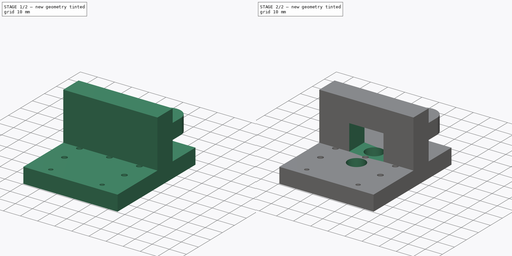
[diagram: build sequence overview — one tinted view per stage of 2, left to right]
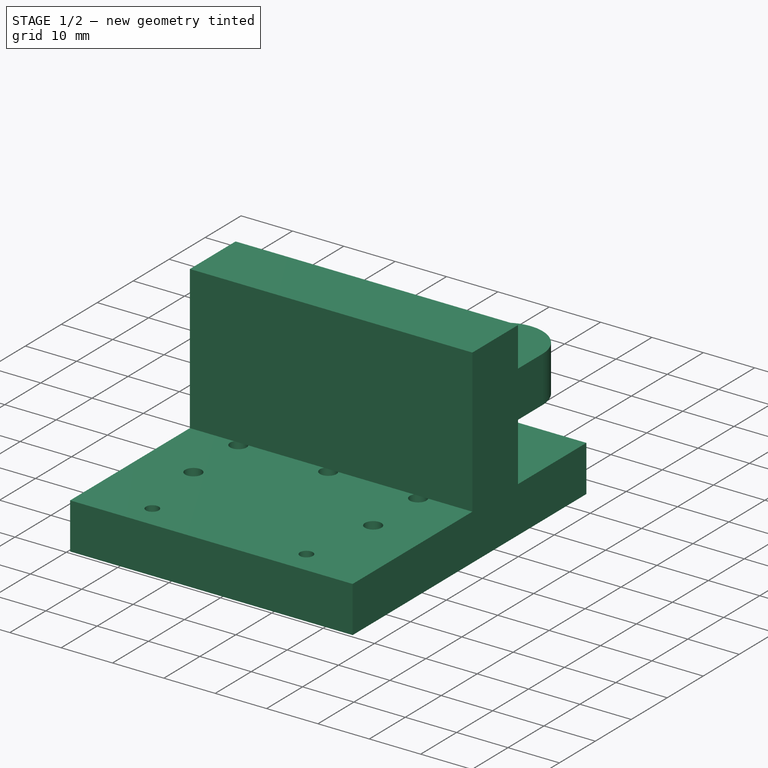
[diagram: stage 1 of 2 — iso view after this stage's code; geometry added in this stage tinted green]
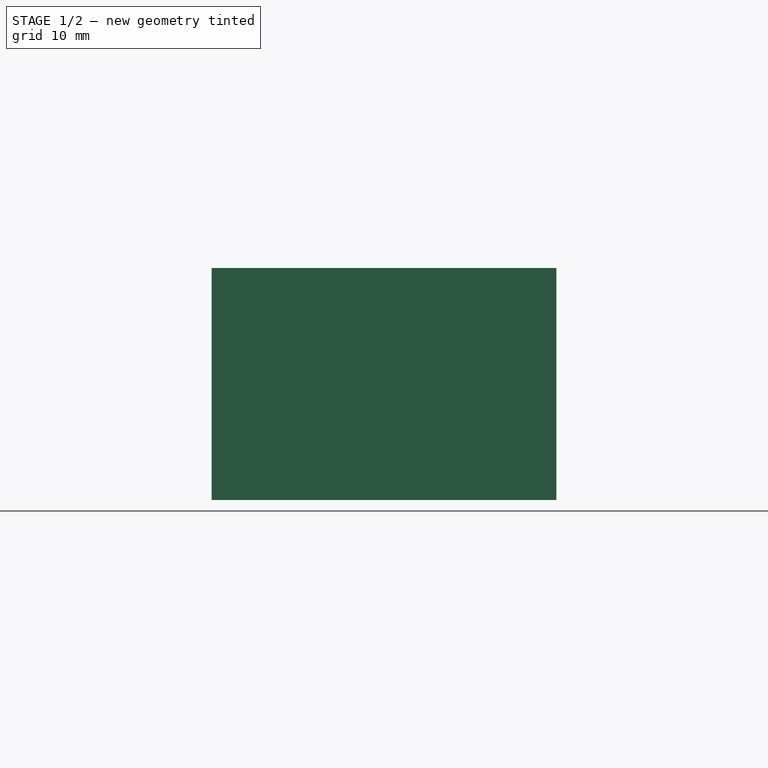
[diagram: stage 1 of 2 — front view after this stage's code; geometry added in this stage tinted green]
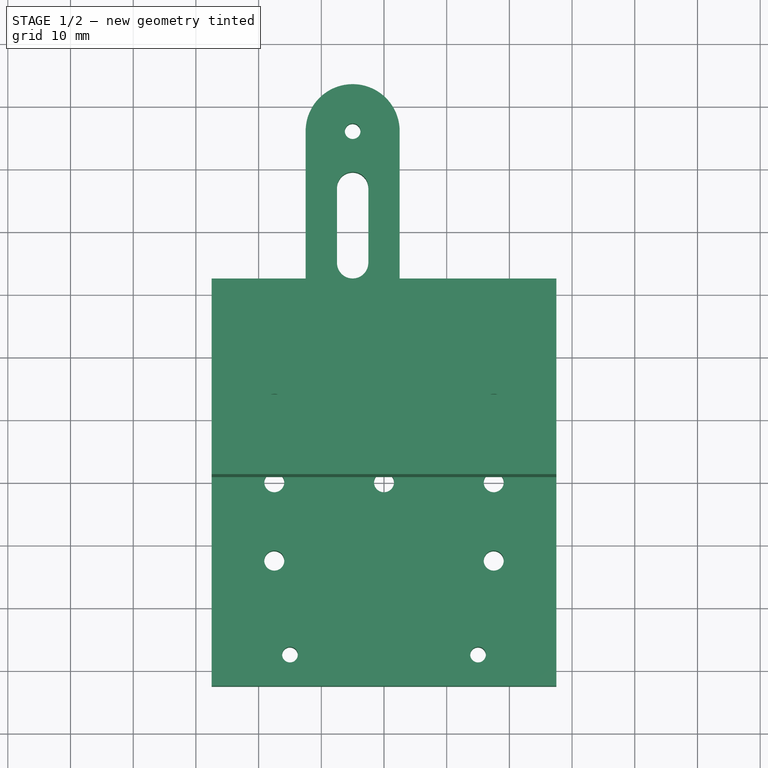
[diagram: stage 1 of 2 — top view after this stage's code; geometry added in this stage tinted green]
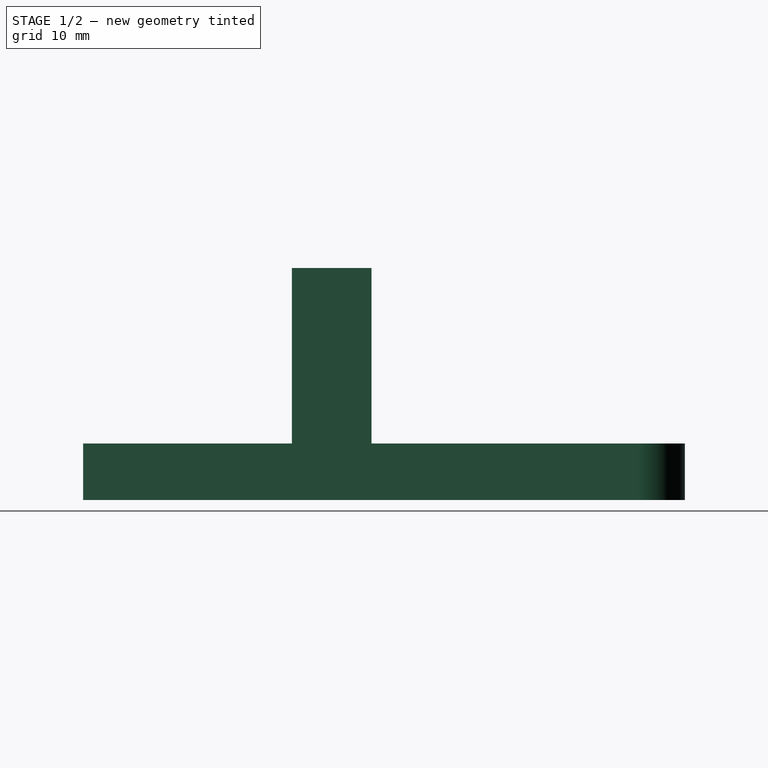
[diagram: stage 1 of 2 — right view after this stage's code; geometry added in this stage tinted green]
FCSTD DOCUMENT  (FreeCAD 0.19R20209 (Git))
Label: X-Axel-Printhead-Base
License: Creative Commons Attribution
LicenseURL: http://creativecommons.org/licenses/by/4.0/
objects: Sketcher::SketchObject×4, PartDesign::Pad×2, PartDesign::Pocket×2, PartDesign::Body×1
note: 13 computed .brp shape members not serialized (recipe doc carries the construction recipe); baked Part::Feature solids carry a one-line shape summary decoded from their .brp

FEATURE [Sketcher::SketchObject] Sketch
  MapMode = 5
  Support = -> [XY_Plane]
  sketch-geometry (27):
    g0: LineSegment StartX=-27.5 StartY=32.5 StartZ=0 EndX=-12.5 EndY=32.5 EndZ=0
    g1: LineSegment StartX=27.5 StartY=32.5 StartZ=0 EndX=27.5 EndY=-32.5 EndZ=0
    g2: LineSegment StartX=27.5 StartY=-32.5 StartZ=0 EndX=-27.5 EndY=-32.5 EndZ=0
    g3: LineSegment StartX=-27.5 StartY=-32.5 StartZ=0 EndX=-27.5 EndY=32.5 EndZ=0
    g4: Circle CenterX=-15 CenterY=-27.5 CenterZ=0 NormalX=0 NormalY=0 NormalZ=1 AngleXU=0 Radius=1.25
    g5: Circle CenterX=15 CenterY=-27.5 CenterZ=0 NormalX=0 NormalY=0 NormalZ=1 AngleXU=0 Radius=1.25
    g6: LineSegment StartX=2.5 StartY=56 StartZ=0 EndX=2.5 EndY=32.5 EndZ=0
    g7: LineSegment StartX=-12.5 StartY=32.5 StartZ=0 EndX=-12.5 EndY=56 EndZ=0
    g8: LineSegment StartX=2.5 StartY=32.5 StartZ=0 EndX=27.5 EndY=32.5 EndZ=0
    g9: ArcOfCircle CenterX=-5 CenterY=56 CenterZ=0 NormalX=0 NormalY=0 NormalZ=1 AngleXU=0 Radius=7.5 StartAngle=3e-16 EndAngle=3.14159
    g10: LineSegment [constr] StartX=-12.5 StartY=63.5 StartZ=0 EndX=2.5 EndY=63.5 EndZ=0
    g11: ArcOfCircle CenterX=-5 CenterY=47 CenterZ=0 NormalX=0 NormalY=0 NormalZ=1 AngleXU=0 Radius=2.5 StartAngle=1.1e-15 EndAngle=3.14159
    g12: ArcOfCircle CenterX=-5 CenterY=35 CenterZ=0 NormalX=0 NormalY=0 NormalZ=1 AngleXU=0 Radius=2.5 StartAngle=3.14159 EndAngle=6.28319
    g13: LineSegment StartX=-7.5 StartY=47 StartZ=0 EndX=-7.5 EndY=35 EndZ=0
    g14: LineSegment StartX=-2.5 StartY=47 StartZ=0 EndX=-2.5 EndY=35 EndZ=0
    g15: Circle CenterX=-5 CenterY=56 CenterZ=0 NormalX=0 NormalY=0 NormalZ=1 AngleXU=0 Radius=1.25
    g16: LineSegment [constr] StartX=-17.5 StartY=12.5 StartZ=0 EndX=17.5 EndY=12.5 EndZ=0
    g17: LineSegment [constr] StartX=17.5 StartY=12.5 StartZ=0 EndX=17.5 EndY=-12.5 EndZ=0
    g18: LineSegment [constr] StartX=17.5 StartY=-12.5 StartZ=0 EndX=-17.5 EndY=-12.5 EndZ=0
    g19: LineSegment [constr] StartX=-17.5 StartY=-12.5 StartZ=0 EndX=-17.5 EndY=12.5 EndZ=0
    g20: Circle CenterX=-17.5 CenterY=12.5 CenterZ=0 NormalX=0 NormalY=0 NormalZ=1 AngleXU=0 Radius=1.6
    g21: Circle CenterX=-17.5 CenterY=-12.5 CenterZ=0 NormalX=0 NormalY=0 NormalZ=1 AngleXU=0 Radius=1.6
    g22: Circle CenterX=17.5 CenterY=12.5 CenterZ=0 NormalX=0 NormalY=0 NormalZ=1 AngleXU=0 Radius=1.6
    g23: Circle CenterX=17.5 CenterY=-12.5 CenterZ=0 NormalX=0 NormalY=0 NormalZ=1 AngleXU=0 Radius=1.6
    g24: Circle CenterX=0 CenterY=0 CenterZ=0 NormalX=0 NormalY=0 NormalZ=1 AngleXU=0 Radius=1.6
    g25: Circle CenterX=-17.5 CenterY=-5e-16 CenterZ=0 NormalX=0 NormalY=0 NormalZ=1 AngleXU=0 Radius=1.6
    g26: Circle CenterX=17.5 CenterY=-4e-16 CenterZ=0 NormalX=0 NormalY=0 NormalZ=1 AngleXU=0 Radius=1.6
  constraints (69):
    c: Coincident(g8,g1)
    c: Coincident(g1,g2)
    c: Coincident(g2,g3)
    c: Coincident(g3,g0)
    c: Horizontal(g0)
    c: Horizontal(g2)
    c: Vertical(g1)
    c: Vertical(g3)
    c: Symmetric(g1,g0,g-1)
    c: DistanceY(g3,g3) = 65
    c: DistanceX(g2,g2) = 55
    c: Symmetric(g4,g5,g-2)
    c: DistanceX(g4,g5) = 30
    c: Equal(g4,g5)
    c: Diameter(g4) = 2.5
    c: DistanceY(g2,g4) = 5
    c: Vertical(g6)
    c: Vertical(g7)
    c: Equal(g7,g6)
    c: Coincident(g0,g7)
    c: Tangent(g0,g8)
    c: DistanceX(g0,g6) = 15
    c: DistanceX(g0,g0) = 15
    c: Coincident(g7,g9)
    c: Coincident(g6,g9)
    c: Horizontal(g10)
    c: Tangent(g10,g9)
    c: Angle(g9) = 3.14159
    c: DistanceX(g10,g10) = 15
    c: DistanceY(g0,g10) = 31
    c: Coincident(g6,g8)
    c: Tangent(g11,g14) = 1.5708
    c: Tangent(g11,g13) = -1.5708
    c: Tangent(g13,g12) = -1.5708
    c: Tangent(g14,g12) = 1.5708
    c: Vertical(g13)
    c: Equal(g11,g12)
    c: Diameter(g11) = 5
    c: Vertical(g11,g9)
    c: Tangent(g12,g0)
    c: DistanceY(g12,g11) = 12
    c: Diameter(g15) = 2.5
    c: Coincident(g15,g9)
    c: Coincident(g16,g17)
    c: Coincident(g17,g18)
    c: Coincident(g18,g19)
    c: Coincident(g19,g16)
    c: Horizontal(g16)
    c: Horizontal(g18)
    c: Vertical(g17)
    c: Vertical(g19)
    c: DistanceX(g16,g16) = 35
    c: DistanceY(g19,g19) = 25
    c: Symmetric(g17,g16,g-1)
    c: Equal(g20,g21)
    c: Equal(g21,g22)
    c: Equal(g22,g23)
    c: Equal(g23,g24)
    c: Equal(g24,g26)
    c: Equal(g26,g25)
    c: Diameter(g20) = 3.2
    c: Coincident(g20,g16)
    c: Coincident(g21,g18)
    c: Coincident(g22,g16)
    c: Coincident(g23,g17)
    c: Coincident(g24,g-1)
    c: Symmetric(g21,g20,g25)
    c: Symmetric(g23,g22,g26)
    c: Vertical(g7,g10)
FEATURE [PartDesign::Pad] Pad
  Length = 9
  Length2 = 100
  Profile = -> Sketch
  Refine = true
  Reversed = true
  Type = 0
FEATURE [Sketcher::SketchObject] Sketch001
  MapMode = 5
  Support = -> [XY_Plane]
  sketch-geometry (2):
    g0: Circle CenterX=0 CenterY=7.4 CenterZ=0 NormalX=0 NormalY=0 NormalZ=1 AngleXU=0 Radius=5.1
    g1: Circle CenterX=0 CenterY=-7.4 CenterZ=0 NormalX=0 NormalY=0 NormalZ=1 AngleXU=0 Radius=5.1
  constraints (5):
    c: Equal(g1,g0)
    c: Diameter(g0) = 10.2
    c: Symmetric(g1,g0,g-1)
    c: Vertical(g0,g1)
    c: DistanceY(g1,g0) = 14.8
FEATURE [Sketcher::SketchObject] Sketch002
  MapMode = 5
  Support = -> [XY_Plane]
  sketch-geometry (4):
    g0: LineSegment StartX=-27.5 StartY=13.5 StartZ=0 EndX=27.5 EndY=13.5 EndZ=0
    g1: LineSegment StartX=27.5 StartY=13.5 StartZ=0 EndX=27.5 EndY=0.8 EndZ=0
    g2: LineSegment StartX=27.5 StartY=0.8 StartZ=0 EndX=-27.5 EndY=0.8 EndZ=0
    g3: LineSegment StartX=-27.5 StartY=0.8 StartZ=0 EndX=-27.5 EndY=13.5 EndZ=0
  constraints (10):
    c: Coincident(g0,g1)
    c: Coincident(g1,g2)
    c: Coincident(g2,g3)
    c: Coincident(g3,g0)
    c: Horizontal(g0)
    c: Vertical(g1)
    c: Vertical(g3)
    c: Symmetric(g2,g1,g-2)
    c: DistanceX(g2,g1) = 55
    c: DistanceY(g1,g1) = 12.7
FEATURE [PartDesign::Pad] Pad001
  BaseFeature = -> Pad
  Length = 28
  Length2 = 100
  Profile = -> Sketch002
  Refine = true
  Type = 0
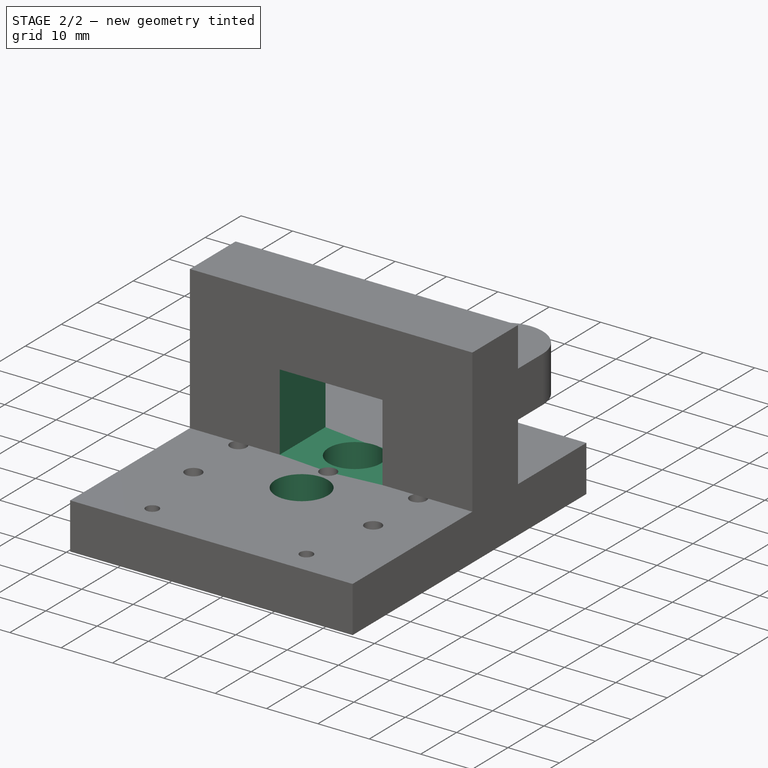
[diagram: stage 2 of 2 — iso view after this stage's code; geometry added in this stage tinted green]
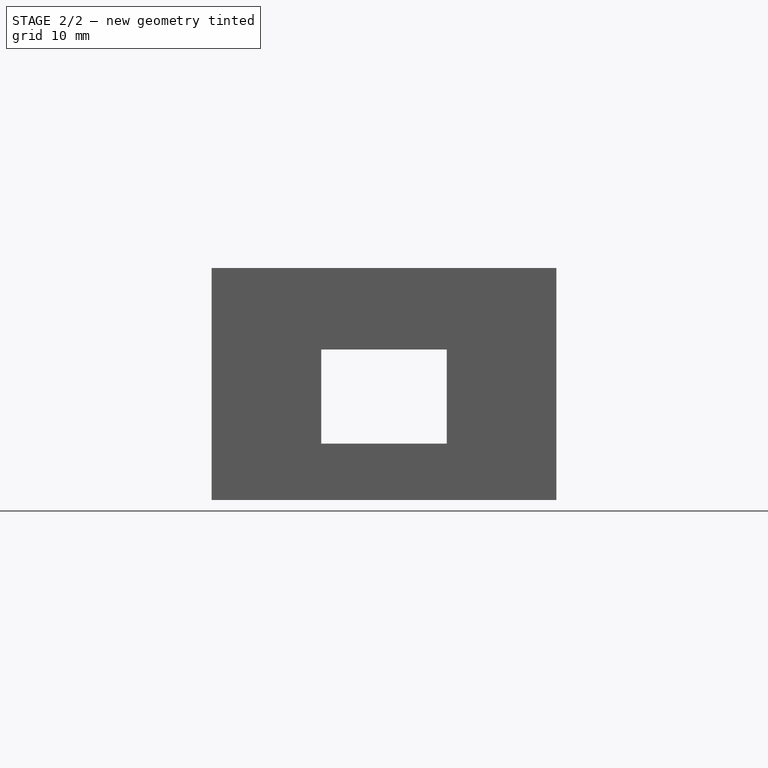
[diagram: stage 2 of 2 — front view after this stage's code; geometry added in this stage tinted green]
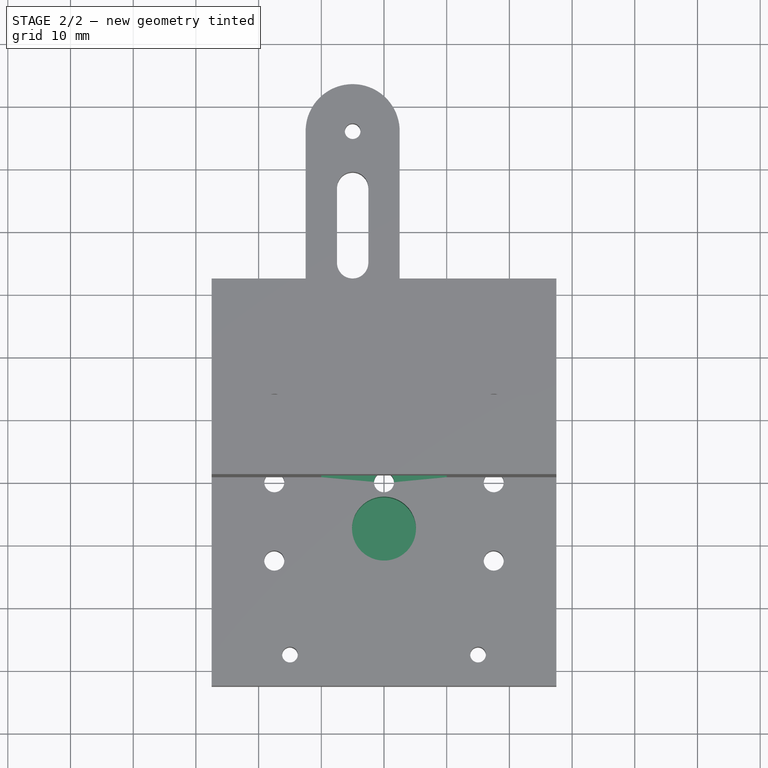
[diagram: stage 2 of 2 — top view after this stage's code; geometry added in this stage tinted green]
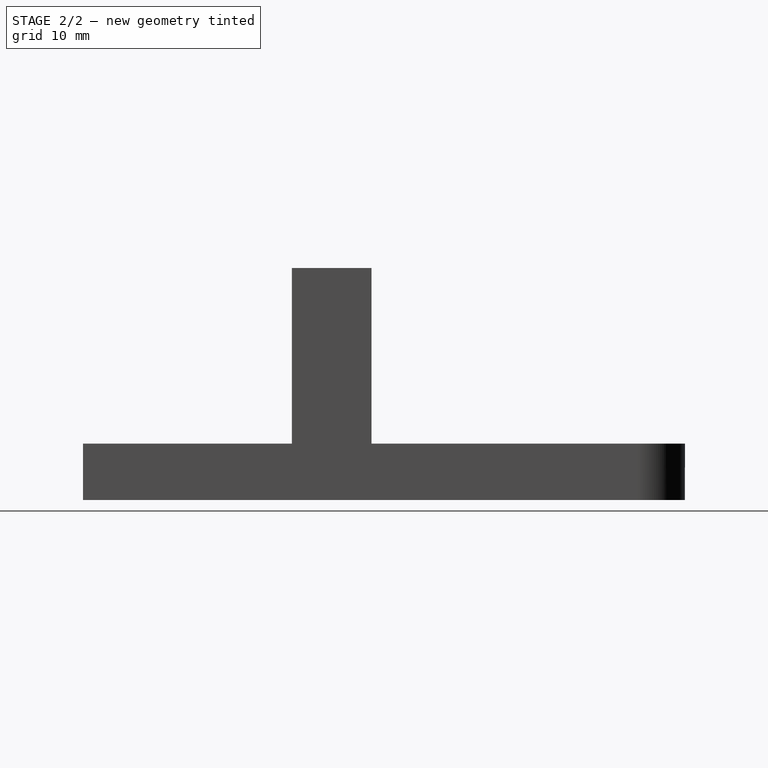
[diagram: stage 2 of 2 — right view after this stage's code; geometry added in this stage tinted green]
FEATURE [Sketcher::SketchObject] Sketch003
  MapMode = 5
  Placement = pos=(0,0,0) rot=(1,0,0;1.5708rad)
  Support = -> [XZ_Plane]
  sketch-geometry (4):
    g0: LineSegment StartX=-10 StartY=15 StartZ=0 EndX=10 EndY=15 EndZ=0
    g1: LineSegment StartX=10 StartY=15 StartZ=0 EndX=10 EndY=0 EndZ=0
    g2: LineSegment StartX=10 StartY=0 StartZ=0 EndX=-10 EndY=0 EndZ=0
    g3: LineSegment StartX=-10 StartY=0 StartZ=0 EndX=-10 EndY=15 EndZ=0
  constraints (11):
    c: Coincident(g0,g1)
    c: Coincident(g1,g2)
    c: Coincident(g2,g3)
    c: Coincident(g3,g0)
    c: Horizontal(g0)
    c: Horizontal(g2)
    c: Vertical(g1)
    c: Vertical(g3)
    c: DistanceX(g2,g2) = 20
    c: DistanceY(g3,g3) = 15
    c: Symmetric(g1,g2,g-1)
FEATURE [PartDesign::Pocket] Pocket001
  BaseFeature = -> Pad001
  Length = 5
  Length2 = 100
  Midplane = true
  Profile = -> Sketch003
  Refine = true
  Type = 1
FEATURE [PartDesign::Pocket] Pocket
  BaseFeature = -> Pocket001
  Length = 8
  Length2 = 100
  Profile = -> Sketch001
  Refine = true
  Type = 0
FEATURE [PartDesign::Body] Body
  Group = -> [Sketch,Pad,Sketch002,Pad001,Sketch003,Pocket001,Sketch001,Pocket]
  Origin = -> Origin
  Tip = -> Pocket
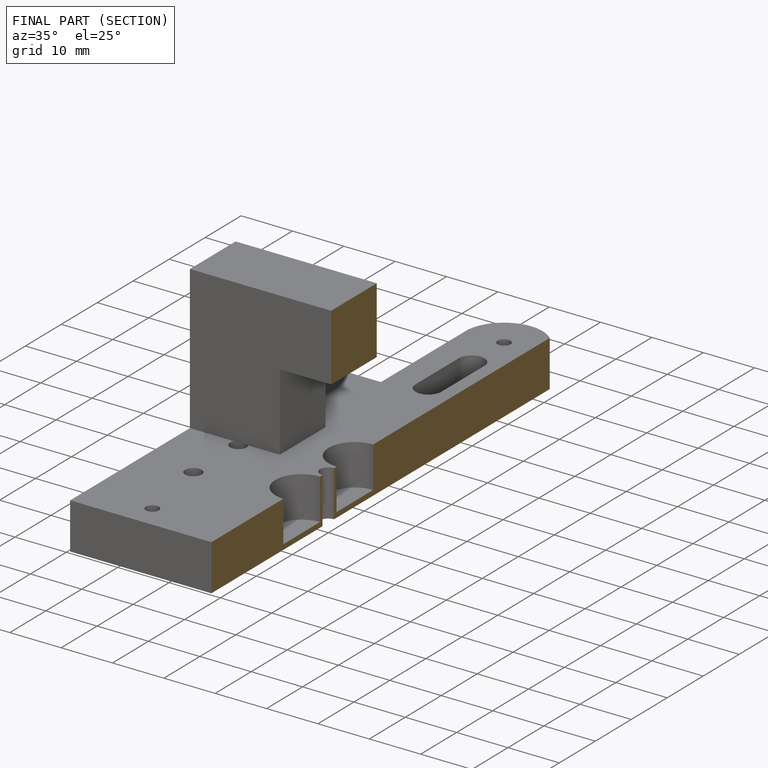
[diagram: finished part — half-section view (interior)]
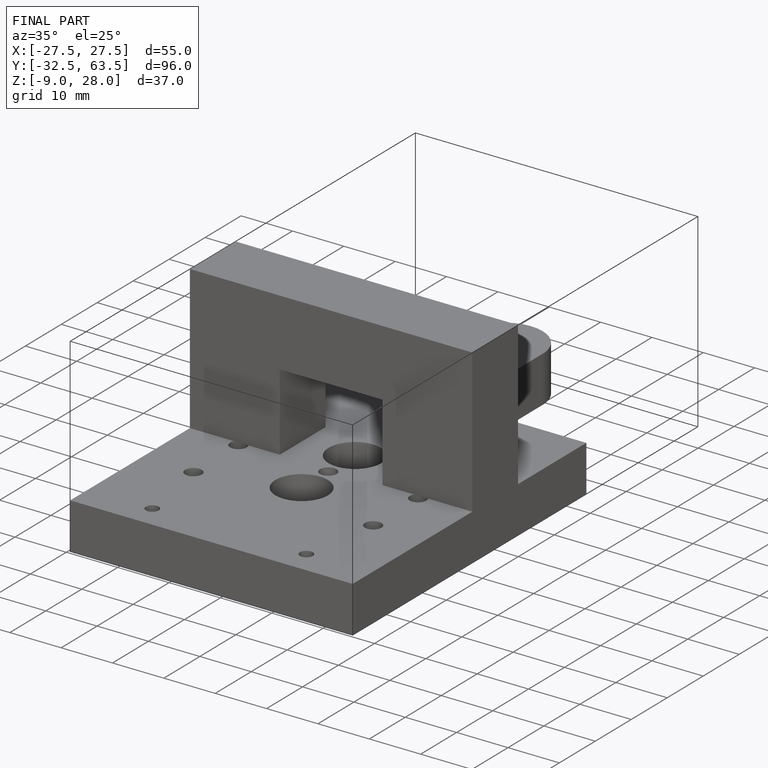
[diagram: finished part — iso view with bounding-box wireframe]
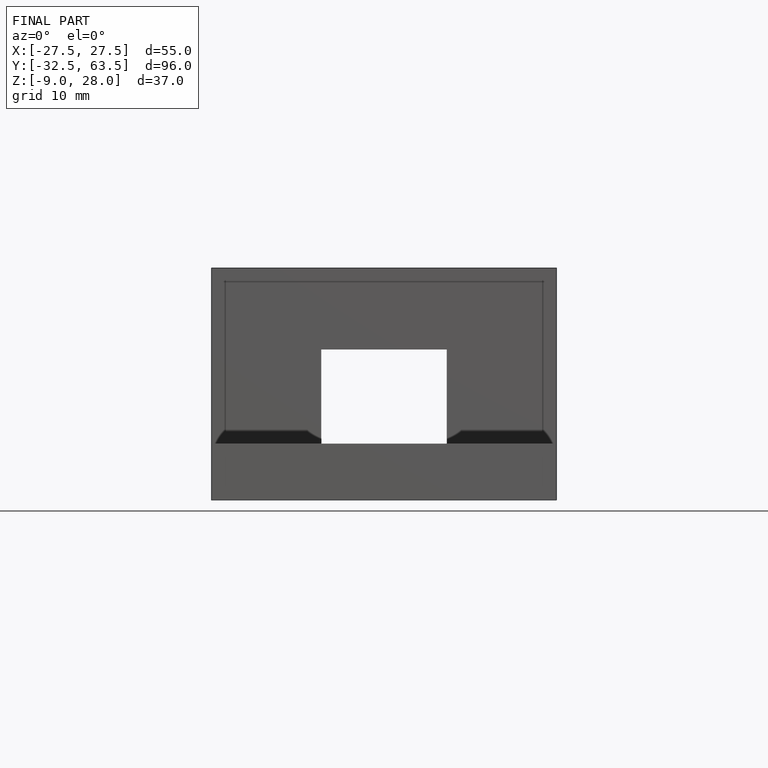
[diagram: finished part — front view with bounding-box wireframe]
